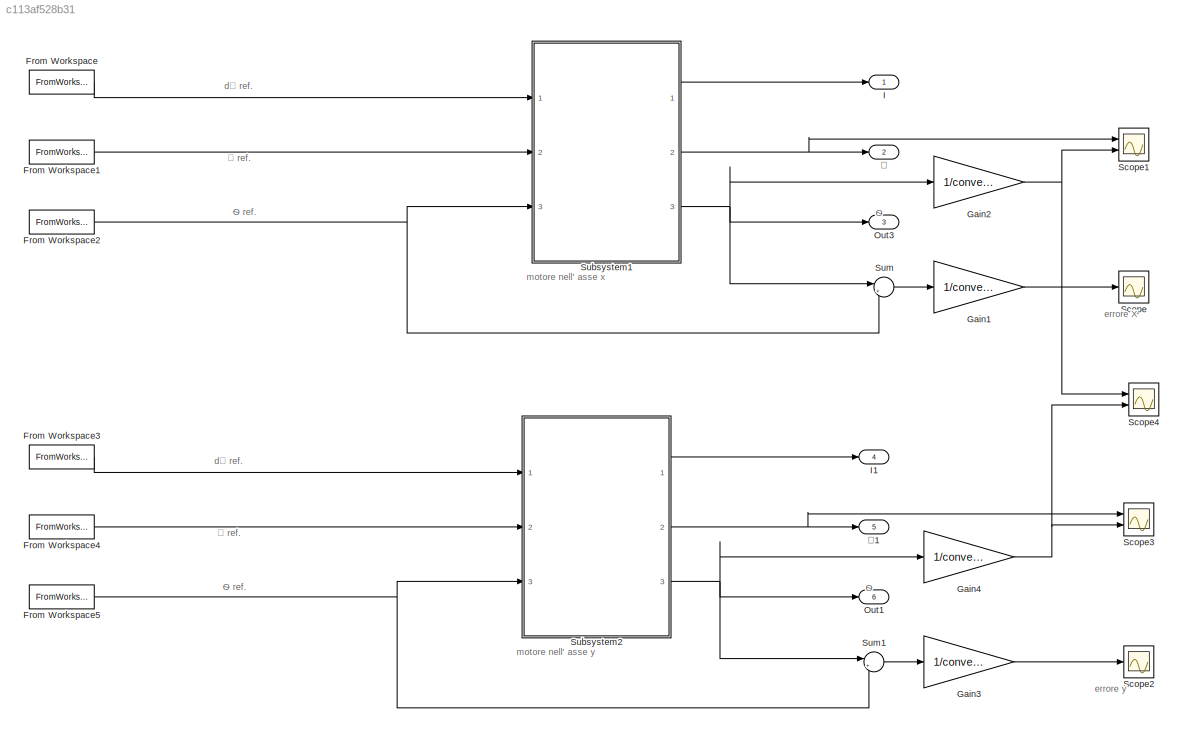
MODEL slx_c113af528b31
KIND model
CONFIG AbsTol = auto
CONFIG EnableMultiTasking = off
CONFIG FixedStep = auto
CONFIG MaxStep = auto
CONFIG MinStep = auto
CONFIG RelTol = 1e-3
CONFIG SampleTimeConstraint = Unconstrained
CONFIG SolverName = VariableStepAuto
CONFIG StartTime = 0.0
CONFIG StopTime = 800
BLOCK [FromWorkspace] From Workspace
  VariableName = PlotAcelX
BLOCK [FromWorkspace] From Workspace1
  VariableName = PlotVelX
BLOCK [FromWorkspace] From Workspace2
  VariableName = PlotX
BLOCK [FromWorkspace] From Workspace3
  VariableName = PlotAcelY
BLOCK [FromWorkspace] From Workspace4
  VariableName = PlotVelY
BLOCK [FromWorkspace] From Workspace5
  VariableName = PlotY
BLOCK [Gain] Gain1
  Gain = 1/conversione
BLOCK [Gain] Gain2
  Gain = 1/conversione
BLOCK [Gain] Gain3
  Gain = 1/conversione
BLOCK [Gain] Gain4
  Gain = 1/conversione
BLOCK [Outport] I
BLOCK [Outport] I1
  Port = 4
BLOCK [Outport] Out1
  Port = 6
BLOCK [Outport] Out3
  Port = 3
BLOCK [Scope] Scope
  Floating = off
  NumInputPorts = 1
  Ports = [1]
  ScopeSpecificationString = Simulink.scopes.TimeScopeBlockCfg('CurrentConfiguration', extmgr.ConfigurationSet(extmgr.Configuration('Core','General UI',true),extmgr.Configuration('Core','Source UI',true),extmgr.Configuration('Sources','WiredSimulink',true,'DataLoggingVariableName','ScopeData2'),extmgr.Configuration('Visuals','Time Domain',true,'SerializedDisplays',{struct('MinYLimReal','-0.01215','MaxYLimReal','0.01609','YLab...<+1475ch>
BLOCK [Scope] Scope1
  Floating = off
  NumInputPorts = 2
  Ports = [2]
  ScopeSpecificationString = Simulink.scopes.TimeScopeBlockCfg('CurrentConfiguration', extmgr.ConfigurationSet(extmgr.Configuration('Core','General UI',true),extmgr.Configuration('Core','Source UI',true),extmgr.Configuration('Sources','WiredSimulink',true,'DataLoggingVariableName','ScopeData3'),extmgr.Configuration('Visuals','Time Domain',true,'SerializedDisplays',{struct('MinYLimReal','-11.61427','MaxYLimReal','27.31776','YL...<+1563ch>
BLOCK [Scope] Scope2
  Floating = off
  NumInputPorts = 1
  Ports = [1]
  ScopeSpecificationString = Simulink.scopes.TimeScopeBlockCfg('CurrentConfiguration', extmgr.ConfigurationSet(extmgr.Configuration('Core','General UI',true),extmgr.Configuration('Core','Source UI',true),extmgr.Configuration('Sources','WiredSimulink',true,'DataLoggingVariableName','ScopeData4'),extmgr.Configuration('Visuals','Time Domain',true,'SerializedDisplays',{struct('MinYLimReal','-0.00377','MaxYLimReal','0.00926','YLab...<+1446ch>
BLOCK [Scope] Scope3
  Floating = off
  NumInputPorts = 2
  Ports = [2]
  ScopeSpecificationString = Simulink.scopes.TimeScopeBlockCfg('CurrentConfiguration', extmgr.ConfigurationSet(extmgr.Configuration('Core','General UI',true),extmgr.Configuration('Core','Source UI',true),extmgr.Configuration('Sources','WiredSimulink',true,'DataLoggingVariableName','ScopeData5'),extmgr.Configuration('Visuals','Time Domain',true,'SerializedDisplays',{struct('MinYLimReal','-8.08846','MaxYLimReal','13.9251','YLab...<+1456ch>
BLOCK [Scope] Scope4
  Floating = off
  NumInputPorts = 2
  Ports = [2]
  ScopeSpecificationString = Simulink.scopes.TimeScopeBlockCfg('CurrentConfiguration', extmgr.ConfigurationSet(extmgr.Configuration('Core','General UI',true),extmgr.Configuration('Core','Source UI',true),extmgr.Configuration('Sources','WiredSimulink',true,'DataLoggingVariableName','ScopeData6'),extmgr.Configuration('Visuals','Time Domain',true,'SerializedDisplays',{struct('MinYLimReal','-0.45619','MaxYLimReal','3.99513','YLab...<+1543ch>
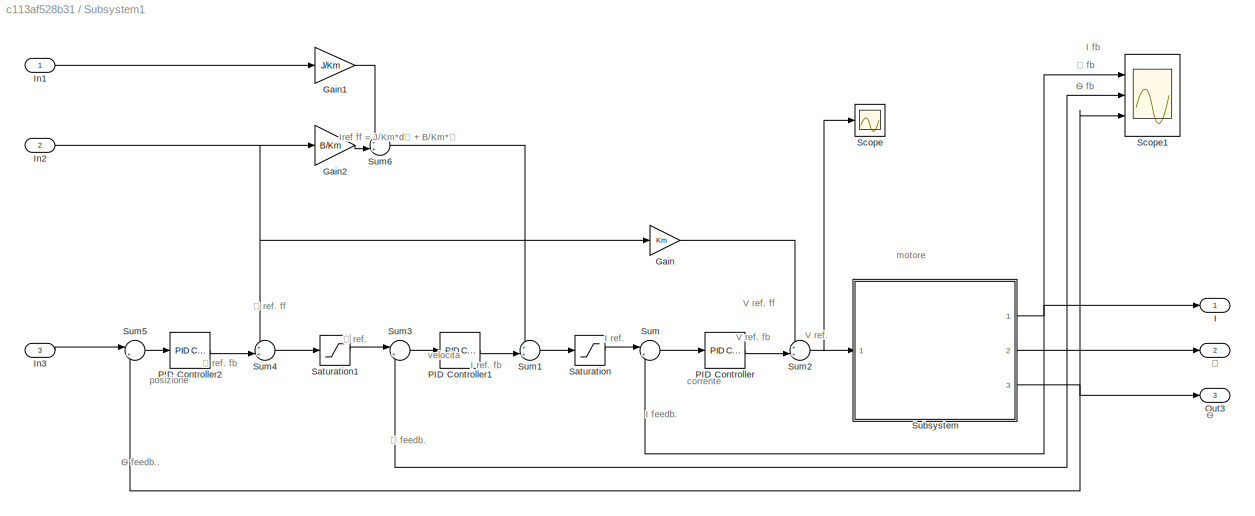
BLOCK [SubSystem] Subsystem1
  Ports = [3, 3]
  RequestExecContextInheritance = off
BLOCK [Gain] Subsystem1/Gain
  Gain = Km
BLOCK [Gain] Subsystem1/Gain1
  Gain = J/Km
BLOCK [Gain] Subsystem1/Gain2
  Gain = B/Km
BLOCK [Outport] Subsystem1/I
BLOCK [Inport] Subsystem1/In1
BLOCK [Inport] Subsystem1/In2
  Port = 2
BLOCK [Inport] Subsystem1/In3
  Port = 3
BLOCK [Outport] Subsystem1/Out3
  Port = 3
BLOCK [Reference] Subsystem1/PID Controller  REF=pid_lib/PID Controller
  Ports = [1, 1]
  SourceBlock = pid_lib/PID Controller
  SourceProductBaseCode = SL
  SourceType = PID 1dof
BLOCK [Reference] Subsystem1/PID Controller1  REF=pid_lib/PID Controller
  Ports = [1, 1]
  SourceBlock = pid_lib/PID Controller
  SourceProductBaseCode = SL
  SourceType = PID 1dof
BLOCK [Reference] Subsystem1/PID Controller2  REF=pid_lib/PID Controller
  Ports = [1, 1]
  SourceBlock = pid_lib/PID Controller
  SourceProductBaseCode = SL
  SourceType = PID 1dof
BLOCK [Saturate] Subsystem1/Saturation
  LowerLimit = -10
  UpperLimit = 10
BLOCK [Saturate] Subsystem1/Saturation1
  LowerLimit = -75
  UpperLimit = 75
BLOCK [Scope] Subsystem1/Scope
  Floating = off
  NumInputPorts = 1
  Ports = [1]
  ScopeSpecificationString = Simulink.scopes.TimeScopeBlockCfg('CurrentConfiguration', extmgr.ConfigurationSet(extmgr.Configuration('Core','General UI',true),extmgr.Configuration('Core','Source UI',true),extmgr.Configuration('Sources','WiredSimulink',true),extmgr.Configuration('Visuals','Time Domain',true,'SerializedDisplays',{struct('MinYLimReal','-4.56158','MaxYLimReal','7.87306','YLabelReal','','MinYLimMag','0.00000','MaxY...<+1324ch>
BLOCK [Scope] Subsystem1/Scope1
  Floating = off
  NumInputPorts = 3
  Ports = [3]
  ScopeSpecificationString = Simulink.scopes.TimeScopeBlockCfg('CurrentConfiguration', extmgr.ConfigurationSet(extmgr.Configuration('Core','General UI',true),extmgr.Configuration('Core','Source UI',true),extmgr.Configuration('Sources','WiredSimulink',true,'DataLoggingVariableName','ScopeData1'),extmgr.Configuration('Visuals','Time Domain',true,'SerializedDisplays',{struct('MinYLimReal','-90.2679','MaxYLimReal','753.53968','YL...<+1555ch>
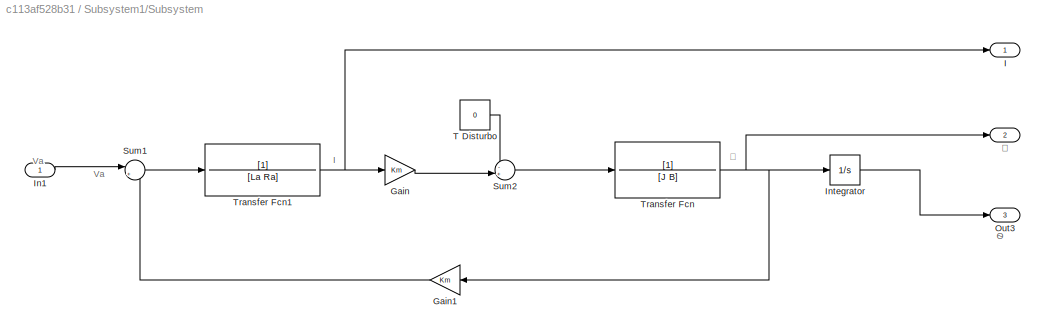
BLOCK [SubSystem] Subsystem1/Subsystem
  Ports = [1, 3]
  RequestExecContextInheritance = off
BLOCK [Gain] Subsystem1/Subsystem/Gain
  Gain = Km
BLOCK [Gain] Subsystem1/Subsystem/Gain1
  Gain = Km
BLOCK [Outport] Subsystem1/Subsystem/I
BLOCK [Inport] Subsystem1/Subsystem/In1
BLOCK [Integrator] Subsystem1/Subsystem/Integrator
  Ports = [1, 1]
BLOCK [Outport] Subsystem1/Subsystem/Out3
  Port = 3
BLOCK [Sum] Subsystem1/Subsystem/Sum1
  Inputs = |+-
  Ports = [2, 1]
BLOCK [Sum] Subsystem1/Subsystem/Sum2
  Inputs = -+|
  Ports = [2, 1]
BLOCK [Constant] Subsystem1/Subsystem/T Disturbo
  Value = 0
BLOCK [TransferFcn] Subsystem1/Subsystem/Transfer Fcn
  Denominator = [J B]
BLOCK [TransferFcn] Subsystem1/Subsystem/Transfer Fcn1
  Denominator = [La Ra]
BLOCK [Outport] Subsystem1/Subsystem/Ꞷ
  Port = 2
BLOCK [Sum] Subsystem1/Sum
  Inputs = |+-
  Ports = [2, 1]
BLOCK [Sum] Subsystem1/Sum1
  Inputs = ++|
  Ports = [2, 1]
BLOCK [Sum] Subsystem1/Sum2
  Inputs = ++|
  Ports = [2, 1]
BLOCK [Sum] Subsystem1/Sum3
  Inputs = |+-
  Ports = [2, 1]
BLOCK [Sum] Subsystem1/Sum4
  Inputs = ++|
  Ports = [2, 1]
BLOCK [Sum] Subsystem1/Sum5
  Inputs = |+-
  Ports = [2, 1]
BLOCK [Sum] Subsystem1/Sum6
  Inputs = ++|
  Ports = [2, 1]
BLOCK [Outport] Subsystem1/Ꞷ
  Port = 2
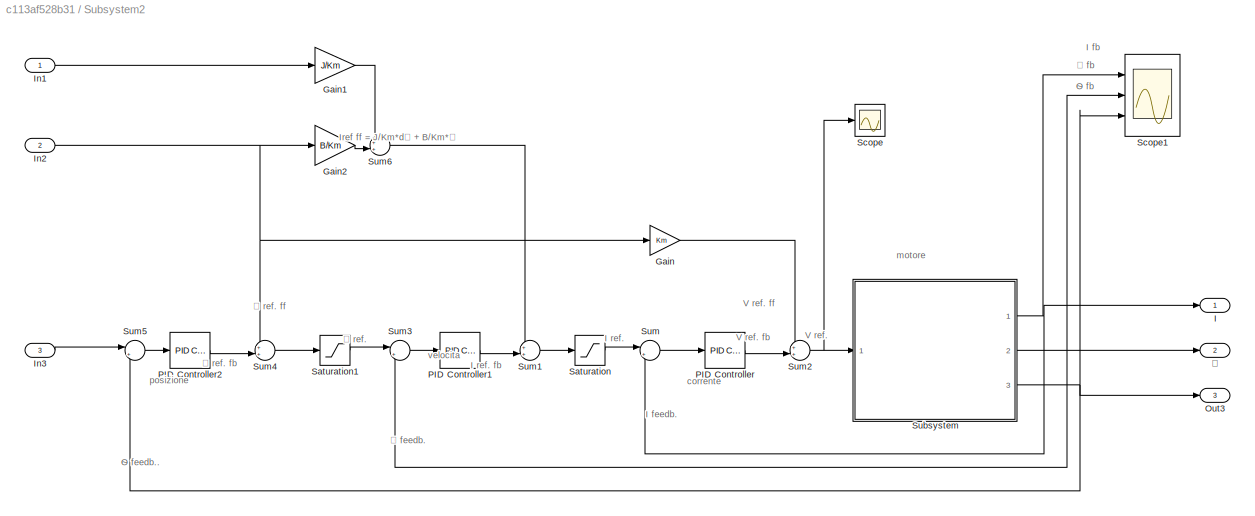
BLOCK [SubSystem] Subsystem2
  Ports = [3, 3]
  RequestExecContextInheritance = off
BLOCK [Gain] Subsystem2/Gain
  Gain = Km
BLOCK [Gain] Subsystem2/Gain1
  Gain = J/Km
BLOCK [Gain] Subsystem2/Gain2
  Gain = B/Km
BLOCK [Outport] Subsystem2/I
BLOCK [Inport] Subsystem2/In1
BLOCK [Inport] Subsystem2/In2
  Port = 2
BLOCK [Inport] Subsystem2/In3
  Port = 3
BLOCK [Outport] Subsystem2/Out3
  Port = 3
BLOCK [Reference] Subsystem2/PID Controller  REF=pid_lib/PID Controller
  Ports = [1, 1]
  SourceBlock = pid_lib/PID Controller
  SourceProductBaseCode = SL
  SourceType = PID 1dof
BLOCK [Reference] Subsystem2/PID Controller1  REF=pid_lib/PID Controller
  Ports = [1, 1]
  SourceBlock = pid_lib/PID Controller
  SourceProductBaseCode = SL
  SourceType = PID 1dof
BLOCK [Reference] Subsystem2/PID Controller2  REF=pid_lib/PID Controller
  Ports = [1, 1]
  SourceBlock = pid_lib/PID Controller
  SourceProductBaseCode = SL
  SourceType = PID 1dof
BLOCK [Saturate] Subsystem2/Saturation
  LowerLimit = -10
  UpperLimit = 10
BLOCK [Saturate] Subsystem2/Saturation1
  LowerLimit = -75
  UpperLimit = 75
BLOCK [Scope] Subsystem2/Scope
  Floating = off
  NumInputPorts = 1
  Ports = [1]
  ScopeSpecificationString = Simulink.scopes.TimeScopeBlockCfg('CurrentConfiguration', extmgr.ConfigurationSet(extmgr.Configuration('Core','General UI',true),extmgr.Configuration('Core','Source UI',true),extmgr.Configuration('Sources','WiredSimulink',true),extmgr.Configuration('Visuals','Time Domain',true,'SerializedDisplays',{struct('MinYLimReal','-4.55897','MaxYLimReal','7.85032','YLabelReal','','MinYLimMag','0.00000','MaxY...<+1324ch>
BLOCK [Scope] Subsystem2/Scope1
  Floating = off
  NumInputPorts = 3
  Ports = [3]
  ScopeSpecificationString = Simulink.scopes.TimeScopeBlockCfg('CurrentConfiguration', extmgr.ConfigurationSet(extmgr.Configuration('Core','General UI',true),extmgr.Configuration('Core','Source UI',true),extmgr.Configuration('Sources','WiredSimulink',true,'DataLoggingVariableName','ScopeData1'),extmgr.Configuration('Visuals','Time Domain',true,'SerializedDisplays',{struct('MinYLimReal','-77.30883','MaxYLimReal','636.9084','YL...<+1524ch>
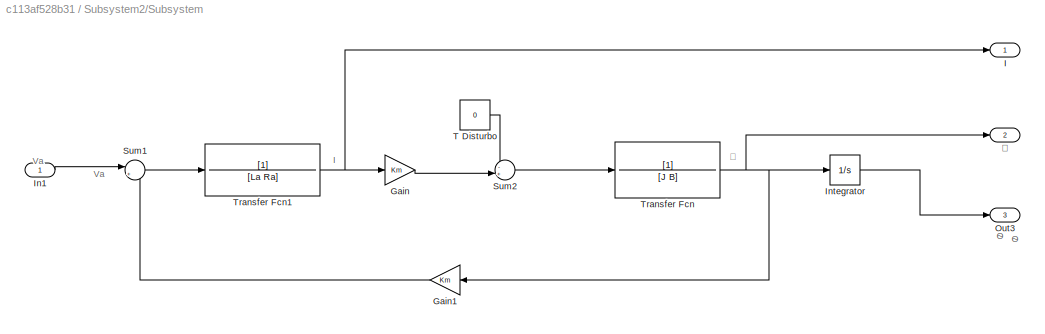
BLOCK [SubSystem] Subsystem2/Subsystem
  Ports = [1, 3]
  RequestExecContextInheritance = off
BLOCK [Gain] Subsystem2/Subsystem/Gain
  Gain = Km
BLOCK [Gain] Subsystem2/Subsystem/Gain1
  Gain = Km
BLOCK [Outport] Subsystem2/Subsystem/I
BLOCK [Inport] Subsystem2/Subsystem/In1
BLOCK [Integrator] Subsystem2/Subsystem/Integrator
  Ports = [1, 1]
BLOCK [Outport] Subsystem2/Subsystem/Out3
  Port = 3
BLOCK [Sum] Subsystem2/Subsystem/Sum1
  Inputs = |+-
  Ports = [2, 1]
BLOCK [Sum] Subsystem2/Subsystem/Sum2
  Inputs = -+|
  Ports = [2, 1]
BLOCK [Constant] Subsystem2/Subsystem/T Disturbo
  Value = 0
BLOCK [TransferFcn] Subsystem2/Subsystem/Transfer Fcn
  Denominator = [J B]
BLOCK [TransferFcn] Subsystem2/Subsystem/Transfer Fcn1
  Denominator = [La Ra]
BLOCK [Outport] Subsystem2/Subsystem/Ꞷ
  Port = 2
BLOCK [Sum] Subsystem2/Sum
  Inputs = |+-
  Ports = [2, 1]
BLOCK [Sum] Subsystem2/Sum1
  Inputs = ++|
  Ports = [2, 1]
BLOCK [Sum] Subsystem2/Sum2
  Inputs = ++|
  Ports = [2, 1]
BLOCK [Sum] Subsystem2/Sum3
  Inputs = |+-
  Ports = [2, 1]
BLOCK [Sum] Subsystem2/Sum4
  Inputs = ++|
  Ports = [2, 1]
BLOCK [Sum] Subsystem2/Sum5
  Inputs = |+-
  Ports = [2, 1]
BLOCK [Sum] Subsystem2/Sum6
  Inputs = ++|
  Ports = [2, 1]
BLOCK [Outport] Subsystem2/Ꞷ
  Port = 2
BLOCK [Sum] Sum
  Inputs = |+-
  Ports = [2, 1]
BLOCK [Sum] Sum1
  Inputs = |+-
  Ports = [2, 1]
BLOCK [Outport] Ꞷ
  Port = 2
BLOCK [Outport] Ꞷ1
  Port = 5
ANNOTATION (root): Ѳ ref.
ANNOTATION (root): Ѳ
ANNOTATION (root): dꞶ ref.
ANNOTATION (root): errore X
ANNOTATION (root): errore y
ANNOTATION (root): motore nell' asse x
ANNOTATION (root): motore nell' asse y
ANNOTATION (root): Ꞷ ref.
ANNOTATION Subsystem1: Ѳ fb
ANNOTATION Subsystem1: Ѳ feedb..
ANNOTATION Subsystem1: Ѳ
ANNOTATION Subsystem1: I fb
ANNOTATION Subsystem1: I feedb.
ANNOTATION Subsystem1: I ref.
ANNOTATION Subsystem1: I ref. fb
ANNOTATION Subsystem1: Iref ff = J/Km*dꞶ + B/Km*Ꞷ
ANNOTATION Subsystem1: V ref.
ANNOTATION Subsystem1: V ref. fb
ANNOTATION Subsystem1: V ref. ff
ANNOTATION Subsystem1: corrente
ANNOTATION Subsystem1: motore
ANNOTATION Subsystem1: posizione
ANNOTATION Subsystem1: velocita
ANNOTATION Subsystem1: Ꞷ fb
ANNOTATION Subsystem1: Ꞷ feedb.
ANNOTATION Subsystem1: Ꞷ ref.
ANNOTATION Subsystem1: Ꞷ ref. fb
ANNOTATION Subsystem1: Ꞷ ref. ff
ANNOTATION Subsystem1/Subsystem: I
ANNOTATION Subsystem1/Subsystem: Va
ANNOTATION Subsystem1/Subsystem: Ѳ
ANNOTATION Subsystem1/Subsystem: Ꞷ
ANNOTATION Subsystem2: Ѳ fb
ANNOTATION Subsystem2: Ѳ feedb..
ANNOTATION Subsystem2: I fb
ANNOTATION Subsystem2: I feedb.
ANNOTATION Subsystem2: I ref.
ANNOTATION Subsystem2: I ref. fb
ANNOTATION Subsystem2: Iref ff = J/Km*dꞶ + B/Km*Ꞷ
ANNOTATION Subsystem2: V ref.
ANNOTATION Subsystem2: V ref. fb
ANNOTATION Subsystem2: V ref. ff
ANNOTATION Subsystem2: corrente
ANNOTATION Subsystem2: motore
ANNOTATION Subsystem2: posizione
ANNOTATION Subsystem2: velocita
ANNOTATION Subsystem2: Ꞷ fb
ANNOTATION Subsystem2: Ꞷ feedb.
ANNOTATION Subsystem2: Ꞷ ref.
ANNOTATION Subsystem2: Ꞷ ref. fb
ANNOTATION Subsystem2: Ꞷ ref. ff
ANNOTATION Subsystem2/Subsystem: I
ANNOTATION Subsystem2/Subsystem: Va
ANNOTATION Subsystem2/Subsystem: Ѳ
ANNOTATION Subsystem2/Subsystem: Ꞷ
LINE From Workspace1:1 -> Subsystem1:2
NET From Workspace2:1 -> Subsystem1:3, Sum:2
LINE From Workspace3:1 -> Subsystem2:1
LINE From Workspace4:1 -> Subsystem2:2
NET From Workspace5:1 -> Subsystem2:3, Sum1:2
LINE From Workspace:1 -> Subsystem1:1
LINE Gain1:1 -> Scope:1
NET Gain2:1 -> Scope1:2, Scope4:1
LINE Gain3:1 -> Scope2:1
NET Gain4:1 -> Scope3:2, Scope4:2
LINE Subsystem1/Gain1:1 -> Subsystem1/Sum6:1
LINE Subsystem1/Gain2:1 -> Subsystem1/Sum6:2
LINE Subsystem1/Gain:1 -> Subsystem1/Sum2:1
LINE Subsystem1/In1:1 -> Subsystem1/Gain1:1
NET Subsystem1/In2:1 -> Subsystem1/Gain2:1, Subsystem1/Gain:1, Subsystem1/Sum4:1
LINE Subsystem1/In3:1 -> Subsystem1/Sum5:1
LINE Subsystem1/PID Controller1:1 -> Subsystem1/Sum1:2
LINE Subsystem1/PID Controller2:1 -> Subsystem1/Sum4:2
LINE Subsystem1/PID Controller:1 -> Subsystem1/Sum2:2
LINE Subsystem1/Saturation1:1 -> Subsystem1/Sum3:1
LINE Subsystem1/Saturation:1 -> Subsystem1/Sum:1
LINE Subsystem1/Subsystem/Gain1:1 -> Subsystem1/Subsystem/Sum1:2
LINE Subsystem1/Subsystem/Gain:1 -> Subsystem1/Subsystem/Sum2:2
LINE Subsystem1/Subsystem/In1:1 -> Subsystem1/Subsystem/Sum1:1
LINE Subsystem1/Subsystem/Integrator:1 -> Subsystem1/Subsystem/Out3:1
LINE Subsystem1/Subsystem/Sum1:1 -> Subsystem1/Subsystem/Transfer Fcn1:1
LINE Subsystem1/Subsystem/Sum2:1 -> Subsystem1/Subsystem/Transfer Fcn:1
LINE Subsystem1/Subsystem/T Disturbo:1 -> Subsystem1/Subsystem/Sum2:1
NET Subsystem1/Subsystem/Transfer Fcn1:1 -> Subsystem1/Subsystem/Gain:1, Subsystem1/Subsystem/I:1
NET Subsystem1/Subsystem/Transfer Fcn:1 -> Subsystem1/Subsystem/Gain1:1, Subsystem1/Subsystem/Integrator:1, Subsystem1/Subsystem/Ꞷ:1
NET Subsystem1/Subsystem:1 -> Subsystem1/I:1, Subsystem1/Scope1:1, Subsystem1/Sum:2
NET Subsystem1/Subsystem:2 -> Subsystem1/Scope1:2, Subsystem1/Sum3:2, Subsystem1/Ꞷ:1
NET Subsystem1/Subsystem:3 -> Subsystem1/Out3:1, Subsystem1/Scope1:3, Subsystem1/Sum5:2
LINE Subsystem1/Sum1:1 -> Subsystem1/Saturation:1
NET Subsystem1/Sum2:1 -> Subsystem1/Scope:1, Subsystem1/Subsystem:1
LINE Subsystem1/Sum3:1 -> Subsystem1/PID Controller1:1
LINE Subsystem1/Sum4:1 -> Subsystem1/Saturation1:1
LINE Subsystem1/Sum5:1 -> Subsystem1/PID Controller2:1
LINE Subsystem1/Sum6:1 -> Subsystem1/Sum1:1
LINE Subsystem1/Sum:1 -> Subsystem1/PID Controller:1
LINE Subsystem1:1 -> I:1
NET Subsystem1:2 -> Scope1:1, Ꞷ:1
NET Subsystem1:3 -> Gain2:1, Out3:1, Sum:1
LINE Subsystem2/Gain1:1 -> Subsystem2/Sum6:1
LINE Subsystem2/Gain2:1 -> Subsystem2/Sum6:2
LINE Subsystem2/Gain:1 -> Subsystem2/Sum2:1
LINE Subsystem2/In1:1 -> Subsystem2/Gain1:1
NET Subsystem2/In2:1 -> Subsystem2/Gain2:1, Subsystem2/Gain:1, Subsystem2/Sum4:1
LINE Subsystem2/In3:1 -> Subsystem2/Sum5:1
LINE Subsystem2/PID Controller1:1 -> Subsystem2/Sum1:2
LINE Subsystem2/PID Controller2:1 -> Subsystem2/Sum4:2
LINE Subsystem2/PID Controller:1 -> Subsystem2/Sum2:2
LINE Subsystem2/Saturation1:1 -> Subsystem2/Sum3:1
LINE Subsystem2/Saturation:1 -> Subsystem2/Sum:1
LINE Subsystem2/Subsystem/Gain1:1 -> Subsystem2/Subsystem/Sum1:2
LINE Subsystem2/Subsystem/Gain:1 -> Subsystem2/Subsystem/Sum2:2
LINE Subsystem2/Subsystem/In1:1 -> Subsystem2/Subsystem/Sum1:1
LINE Subsystem2/Subsystem/Integrator:1 -> Subsystem2/Subsystem/Out3:1
LINE Subsystem2/Subsystem/Sum1:1 -> Subsystem2/Subsystem/Transfer Fcn1:1
LINE Subsystem2/Subsystem/Sum2:1 -> Subsystem2/Subsystem/Transfer Fcn:1
LINE Subsystem2/Subsystem/T Disturbo:1 -> Subsystem2/Subsystem/Sum2:1
NET Subsystem2/Subsystem/Transfer Fcn1:1 -> Subsystem2/Subsystem/Gain:1, Subsystem2/Subsystem/I:1
NET Subsystem2/Subsystem/Transfer Fcn:1 -> Subsystem2/Subsystem/Gain1:1, Subsystem2/Subsystem/Integrator:1, Subsystem2/Subsystem/Ꞷ:1
NET Subsystem2/Subsystem:1 -> Subsystem2/I:1, Subsystem2/Scope1:1, Subsystem2/Sum:2
NET Subsystem2/Subsystem:2 -> Subsystem2/Scope1:2, Subsystem2/Sum3:2, Subsystem2/Ꞷ:1
NET Subsystem2/Subsystem:3 -> Subsystem2/Out3:1, Subsystem2/Scope1:3, Subsystem2/Sum5:2
LINE Subsystem2/Sum1:1 -> Subsystem2/Saturation:1
NET Subsystem2/Sum2:1 -> Subsystem2/Scope:1, Subsystem2/Subsystem:1
LINE Subsystem2/Sum3:1 -> Subsystem2/PID Controller1:1
LINE Subsystem2/Sum4:1 -> Subsystem2/Saturation1:1
LINE Subsystem2/Sum5:1 -> Subsystem2/PID Controller2:1
LINE Subsystem2/Sum6:1 -> Subsystem2/Sum1:1
LINE Subsystem2/Sum:1 -> Subsystem2/PID Controller:1
LINE Subsystem2:1 -> I1:1
NET Subsystem2:2 -> Scope3:1, Ꞷ1:1
NET Subsystem2:3 -> Gain4:1, Out1:1, Sum1:1
LINE Sum1:1 -> Gain3:1
LINE Sum:1 -> Gain1:1
note: NET lines group one-source signal fan-out (src -> all destinations, sorted); 1:1 wires keep LINE
